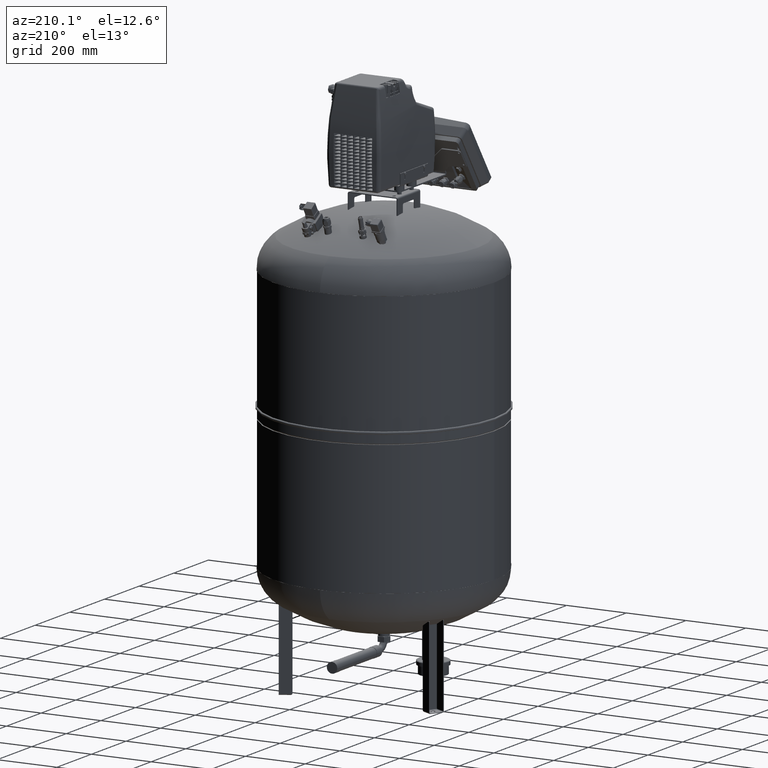
[diagram: clean part render]
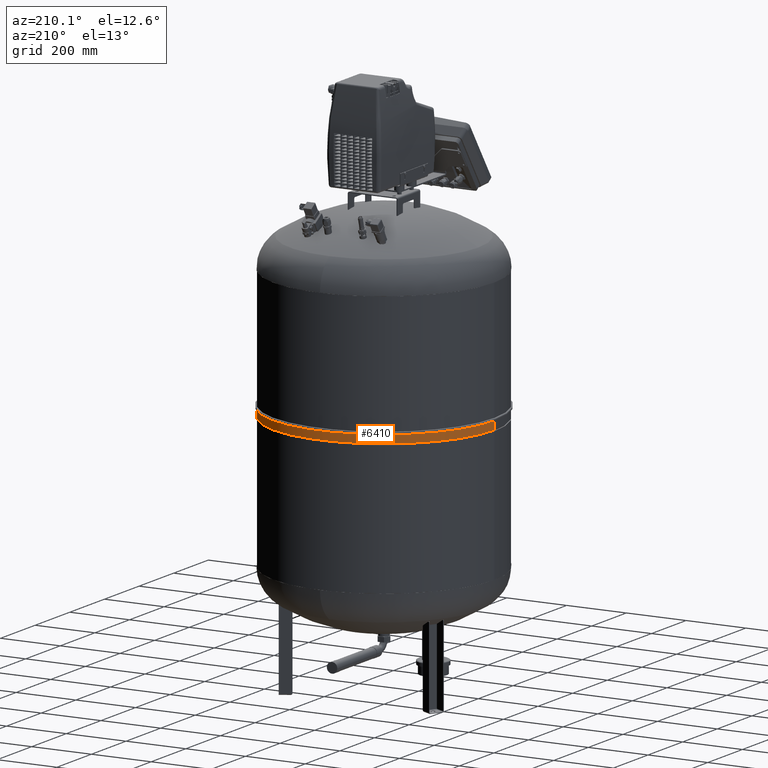
[diagram: same view with one face highlighted and labeled with its STEP entity id]
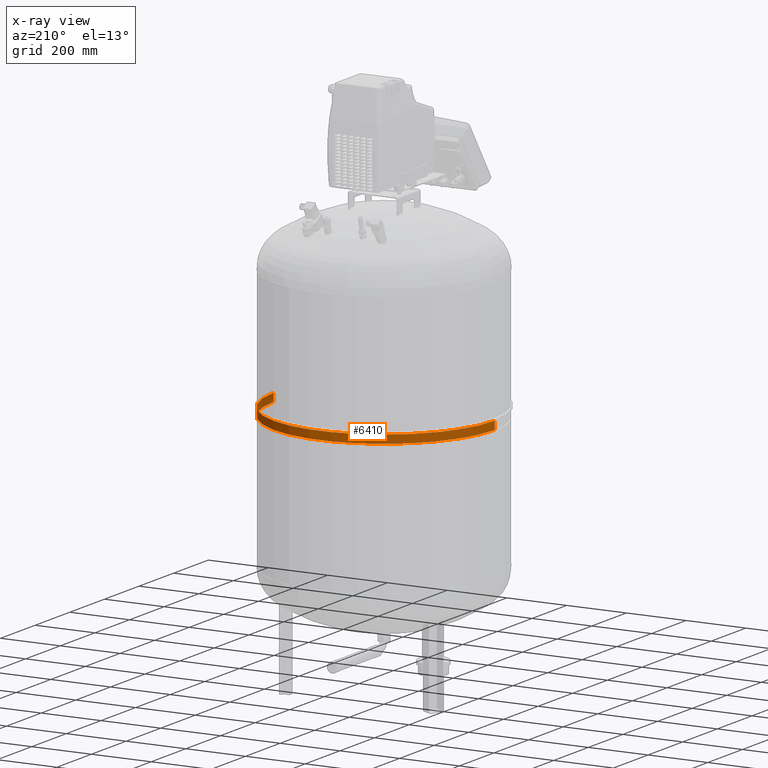
[diagram: x-ray of the same camera — body ghosted, the highlighted face saturated]
A machine part, auxiliary view. The second image highlights one B-rep face of the part: STEP entity #6410.
The next image is the same camera in x-ray: the body ghosted, the highlighted face saturated — about 4% of this face is hidden behind the body in this view.
In plain terms, the highlighted cylindrical surface (partial cylindrical patch) has radius 370 mm, axis along (-0, 0, -1).
Its self-contained STEP definition (entity closure, byte-faithful):
#6208=CARTESIAN_POINT('',(-369.99999999999972,0.0,823.5));
#6209=VERTEX_POINT('',#6208);
#6225=CARTESIAN_POINT('',(369.99999999999972,-4.531044E-014,823.49999999999989));
#6226=VERTEX_POINT('',#6225);
#6248=CARTESIAN_POINT('',(-369.99999999999972,0.0,850.60000000000002));
#6249=VERTEX_POINT('',#6248);
#6250=CARTESIAN_POINT('',(-369.99999999999972,0.0,823.5));
#6251=DIRECTION('',(0.0,0.0,1.0));
#6252=VECTOR('',#6251,27.100000000000023);
#6253=LINE('',#6250,#6252);
#6254=EDGE_CURVE('',#6209,#6249,#6253,.T.);
#6257=CARTESIAN_POINT('',(369.99999999999972,-4.531044E-014,850.59999999999991));
#6258=VERTEX_POINT('',#6257);
#6259=CARTESIAN_POINT('',(369.99999999999972,-4.531044E-014,823.49999999999989));
#6260=DIRECTION('',(0.0,0.0,1.0));
#6261=VECTOR('',#6260,27.100000000000023);
#6262=LINE('',#6259,#6261);
#6263=EDGE_CURVE('',#6226,#6258,#6262,.T.);
#6383=CARTESIAN_POINT('',(4.905360E-015,0.0,850.60000000000002));
#6384=DIRECTION('',(0.0,0.0,-1.0));
#6385=DIRECTION('',(-1.0,0.0,0.0));
#6386=AXIS2_PLACEMENT_3D('',#6383,#6384,#6385);
#6387=CIRCLE('',#6386,369.99999999999972);
#6388=EDGE_CURVE('',#6249,#6258,#6387,.T.);
#6393=CARTESIAN_POINT('',(2.733215E-015,0.0,837.04999999999995));
#6394=DIRECTION('',(-1.603059E-016,0.0,-1.0));
#6395=DIRECTION('',(-1.0,0.0,0.0));
#6396=AXIS2_PLACEMENT_3D('',#6393,#6394,#6395);
#6397=CYLINDRICAL_SURFACE('',#6396,369.99999999999972);
#6398=ORIENTED_EDGE('',*,*,#6254,.T.);
#6399=ORIENTED_EDGE('',*,*,#6388,.T.);
#6400=ORIENTED_EDGE('',*,*,#6263,.F.);
#6401=CARTESIAN_POINT('',(5.610705E-016,0.0,823.5));
#6402=DIRECTION('',(0.0,0.0,-1.0));
#6403=DIRECTION('',(-1.0,0.0,0.0));
#6404=AXIS2_PLACEMENT_3D('',#6401,#6402,#6403);
#6405=CIRCLE('',#6404,369.99999999999972);
#6406=EDGE_CURVE('',#6209,#6226,#6405,.T.);
#6407=ORIENTED_EDGE('',*,*,#6406,.F.);
#6408=EDGE_LOOP('',(#6398,#6399,#6400,#6407));
#6409=FACE_OUTER_BOUND('',#6408,.T.);
#6410=ADVANCED_FACE('',(#6409),#6397,.T.);